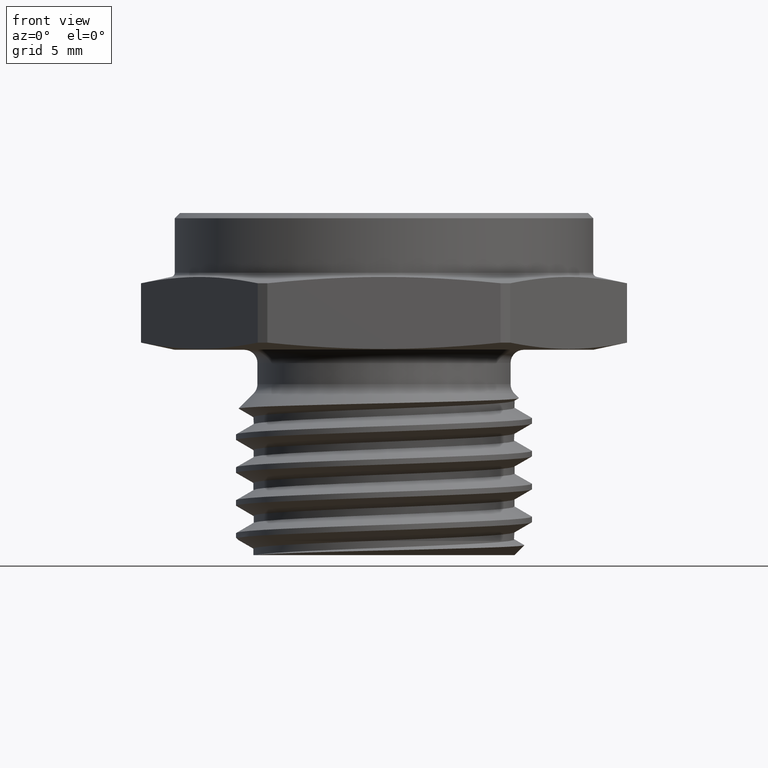
[diagram: clean part render]
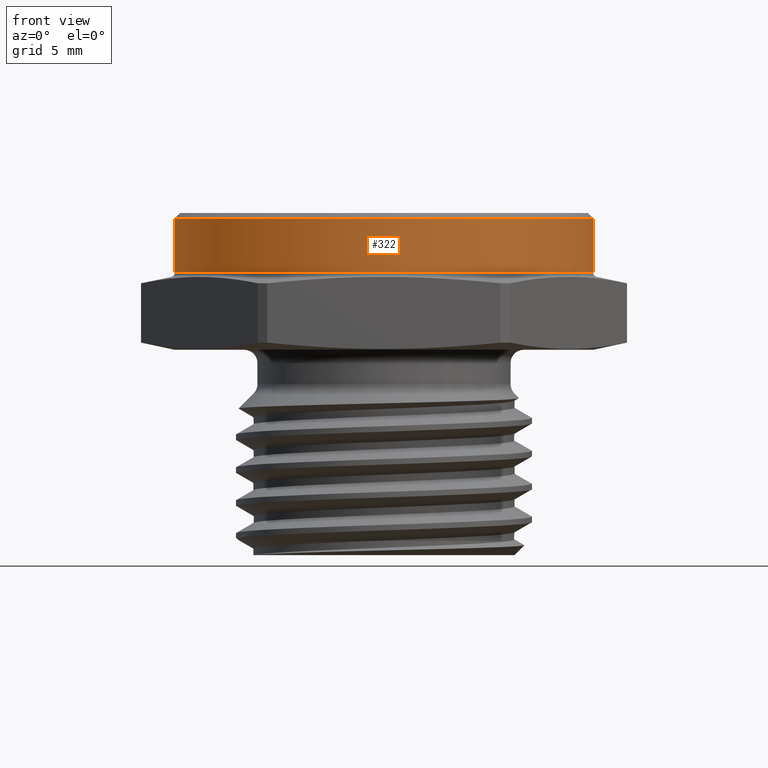
[diagram: same view with one face highlighted and labeled with its STEP entity id]
A machine part, front view. The second image highlights one B-rep face of the part: STEP entity #322.
In plain terms, the highlighted cylindrical surface (partial cylindrical patch) has radius 10.0965 mm, axis along (-0, -0, -1).
Its self-contained STEP definition (entity closure, byte-faithful):
#38 = FACE_OUTER_BOUND ( 'NONE', #285, .T. ) ;
#41 = CYLINDRICAL_SURFACE ( 'NONE', #2278, 0.3974999999999999100 ) ;
#155 = AXIS2_PLACEMENT_3D ( 'NONE', #860, #861, #862 ) ;
#191 = AXIS2_PLACEMENT_3D ( 'NONE', #1519, #1520, #1521 ) ;
#257 = VERTEX_POINT ( 'NONE', #2713 ) ;
#268 = VERTEX_POINT ( 'NONE', #2701 ) ;
#269 = VERTEX_POINT ( 'NONE', #2700 ) ;
#285 = EDGE_LOOP ( 'NONE', ( #2011, #2012, #2013, #2014 ) ) ;
#322 = ADVANCED_FACE ( 'NONE', ( #38 ), #41, .T. ) ;
#404 = CIRCLE ( 'NONE', #155, 0.3974999999999999100 ) ;
#748 = CARTESIAN_POINT ( 'NONE',  ( 0.3974999999999999100, 4.867971026610726800E-017, 0.2500000000000009400 ) ) ;
#860 = CARTESIAN_POINT ( 'NONE',  ( 0.0000000000000000000, 0.0000000000000000000, 0.1464782722655600700 ) ) ;
#861 = DIRECTION ( 'NONE',  ( 6.123233995736748800E-017, 0.0000000000000000000, 1.000000000000000000 ) ) ;
#862 = DIRECTION ( 'NONE',  ( 1.000000000000000000, 0.0000000000000000000, -4.295358480604188400E-017 ) ) ;
#1194 = DIRECTION ( 'NONE',  ( -0.0000000000000000000, -0.0000000000000000000, -1.000000000000000000 ) ) ;
#1198 = DIRECTION ( 'NONE',  ( -0.0000000000000000000, -0.0000000000000000000, -1.000000000000000000 ) ) ;
#1199 = CARTESIAN_POINT ( 'NONE',  ( -0.3974999999999999100, 0.0000000000000000000, 0.2600000000000000100 ) ) ;
#1204 = CARTESIAN_POINT ( 'NONE',  ( 0.3974999999999999100, 4.867971026610726800E-017, 0.2600000000000000100 ) ) ;
#1519 = CARTESIAN_POINT ( 'NONE',  ( 0.0000000000000000000, 0.0000000000000000000, 0.2500000000000009400 ) ) ;
#1520 = DIRECTION ( 'NONE',  ( 0.0000000000000000000, 0.0000000000000000000, -1.000000000000000000 ) ) ;
#1521 = DIRECTION ( 'NONE',  ( 1.000000000000000000, 0.0000000000000000000, 0.0000000000000000000 ) ) ;
#1953 = VERTEX_POINT ( 'NONE', #748 ) ;
#2011 = ORIENTED_EDGE ( 'NONE', *, *, #2171, .F. ) ;
#2012 = ORIENTED_EDGE ( 'NONE', *, *, #2236, .T. ) ;
#2013 = ORIENTED_EDGE ( 'NONE', *, *, #2169, .T. ) ;
#2014 = ORIENTED_EDGE ( 'NONE', *, *, #2137, .T. ) ;
#2072 = LINE ( 'NONE', #1199, #2078 ) ;
#2076 = LINE ( 'NONE', #1204, #2081 ) ;
#2078 = VECTOR ( 'NONE', #1194, 39.37007874015748100 ) ;
#2081 = VECTOR ( 'NONE', #1198, 39.37007874015748100 ) ;
#2137 = EDGE_CURVE ( 'NONE', #268, #257, #404, .T. ) ;
#2169 = EDGE_CURVE ( 'NONE', #269, #268, #2072, .T. ) ;
#2171 = EDGE_CURVE ( 'NONE', #1953, #257, #2076, .T. ) ;
#2236 = EDGE_CURVE ( 'NONE', #1953, #269, #2416, .T. ) ;
#2278 = AXIS2_PLACEMENT_3D ( 'NONE', #2655, #2660, #2658 ) ;
#2416 = CIRCLE ( 'NONE', #191, 0.3974999999999999100 ) ;
#2655 = CARTESIAN_POINT ( 'NONE',  ( 0.0000000000000000000, 0.0000000000000000000, 0.2600000000000000100 ) ) ;
#2658 = DIRECTION ( 'NONE',  ( -1.000000000000000000, 0.0000000000000000000, 0.0000000000000000000 ) ) ;
#2660 = DIRECTION ( 'NONE',  ( -0.0000000000000000000, -0.0000000000000000000, -1.000000000000000000 ) ) ;
#2700 = CARTESIAN_POINT ( 'NONE',  ( -0.3974999999999999100, 0.0000000000000000000, 0.2500000000000009400 ) ) ;
#2701 = CARTESIAN_POINT ( 'NONE',  ( -0.3974999999999999100, 0.0000000000000000000, 0.1464782722655600900 ) ) ;
#2713 = CARTESIAN_POINT ( 'NONE',  ( 0.3974999999999999100, 4.867971026610726800E-017, 0.1464782722655600700 ) ) ;